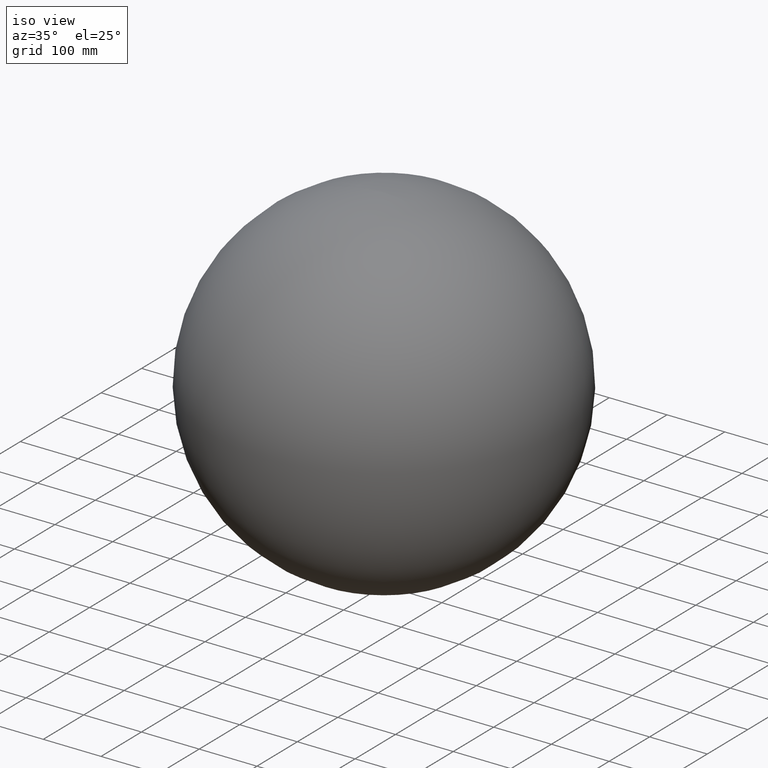
[diagram: clean part render]
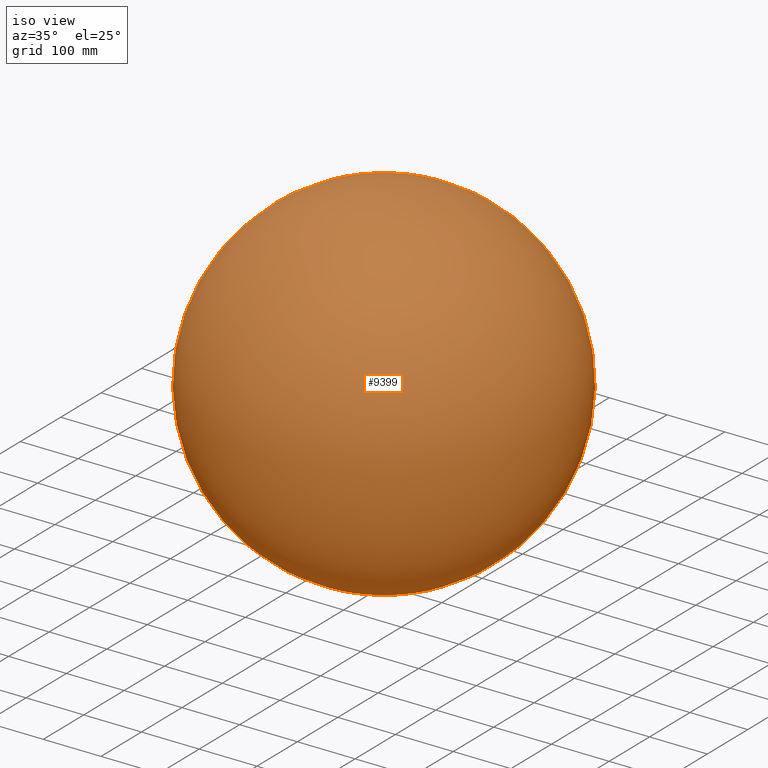
[diagram: same view with one face highlighted and labeled with its STEP entity id]
A machine part, iso view. The second image highlights one B-rep face of the part: STEP entity #9399.
In plain terms, the highlighted spherical surface has radius 300 mm.
Its self-contained STEP definition (entity closure, byte-faithful):
#472 = SPHERICAL_SURFACE ( 'NONE', #6538, 300.0000000000000000 ) ;
#1520 = DIRECTION ( 'NONE',  ( 0.000000000000000000, 0.000000000000000000, 1.000000000000000000 ) ) ;
#3582 = DIRECTION ( 'NONE',  ( -1.000000000000000000, 1.224646799147349509E-16, 0.000000000000000000 ) ) ;
#6486 = CARTESIAN_POINT ( 'NONE',  ( 0.000000000000000000, 0.000000000000000000, 0.000000000000000000 ) ) ;
#6538 = AXIS2_PLACEMENT_3D ( 'NONE', #6486, #1520, #3582 ) ;
#9399 = ADVANCED_FACE ( 'NONE', ( ), #472, .T. ) ;